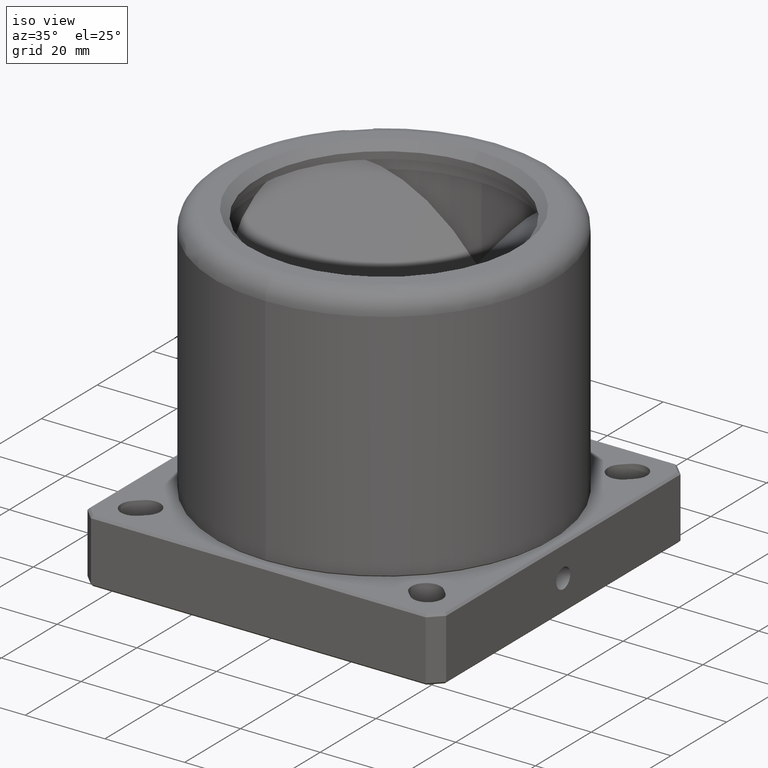
[diagram: clean part render]
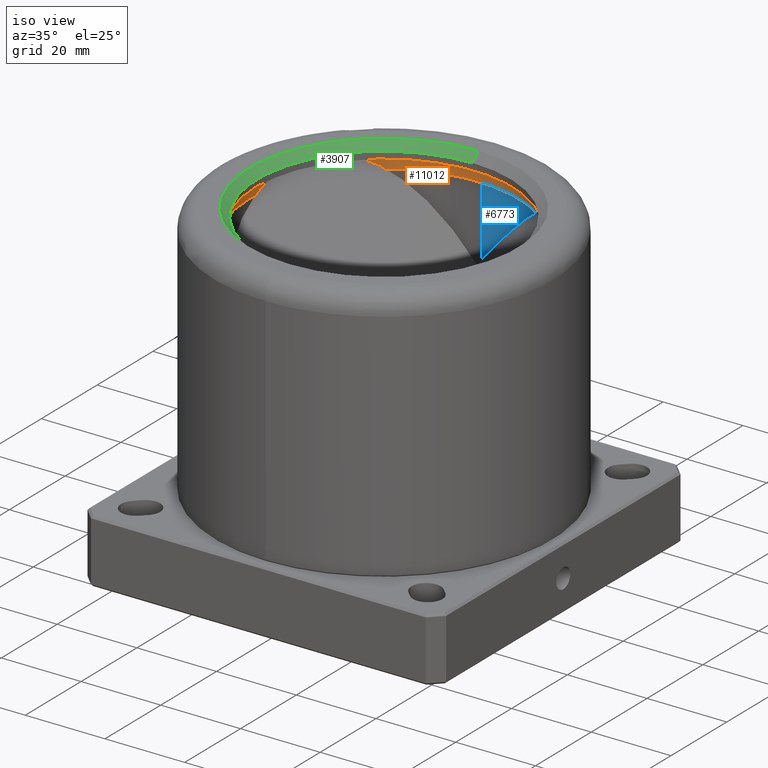
[diagram: same view with three faces highlighted in distinct colors, each labeled with its STEP entity id]
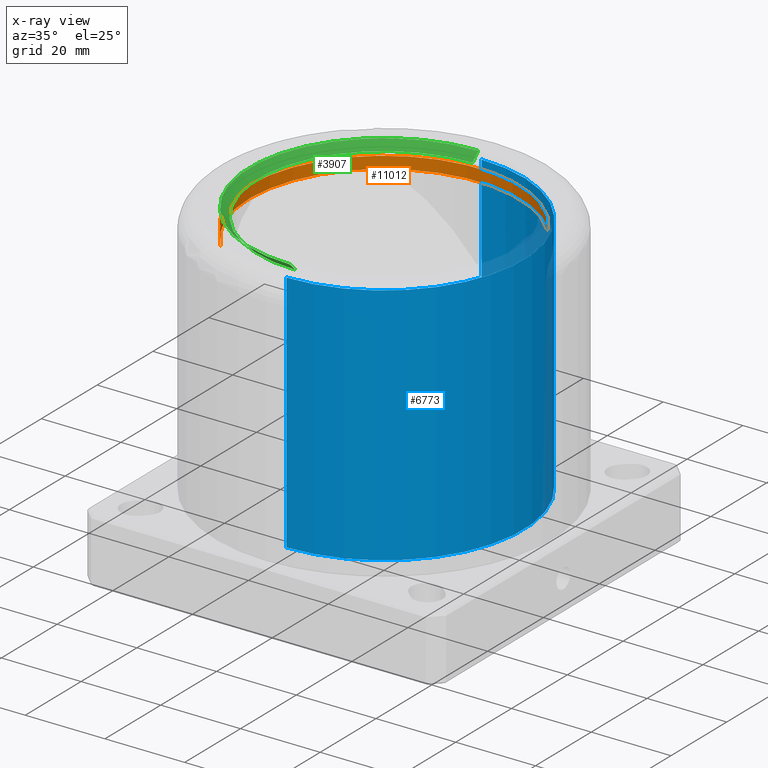
[diagram: x-ray of the same camera — body ghosted, the three highlighted faces saturated]
A machine part, iso view with three faces highlighted in distinct colors.
The next image is the same camera in x-ray (body ghosted, the three faces saturated) — at least one of them is partly hidden behind the body in this view.
Their STEP definitions:

[orange] entity #11012 — the highlighted cylindrical surface (partial cylindrical patch) has radius 33.8 mm, axis along (-0, -0, 1).
#412 = EDGE_CURVE ( 'NONE', #908, #2122, #7817, .T. ) ;
#638 = DIRECTION ( 'NONE',  ( -1.630219754709588900E-015, -3.446797922467301400E-016, 1.000000000000000000 ) ) ;
#908 = VERTEX_POINT ( 'NONE', #9680 ) ;
#1424 = CARTESIAN_POINT ( 'NONE',  ( 7.001642459291711200E-015, 7.486135543895150400E-015, 73.00000000000000000 ) ) ;
#2122 = VERTEX_POINT ( 'NONE', #3504 ) ;
#2354 = DIRECTION ( 'NONE',  ( -0.7440789670012321100, -0.6680916784890971200, -1.642341752404077500E-015 ) ) ;
#2461 = EDGE_LOOP ( 'NONE', ( #2470, #5391, #8292, #7833 ) ) ;
#2470 = ORIENTED_EDGE ( 'NONE', *, *, #412, .F. ) ;
#3254 = VERTEX_POINT ( 'NONE', #4341 ) ;
#3308 = CARTESIAN_POINT ( 'NONE',  ( 2.110983195162944800E-015, 6.452096167154959700E-015, 76.00000000000000000 ) ) ;
#3504 = CARTESIAN_POINT ( 'NONE',  ( -25.14986908464164700, -22.58149873293147500, 75.99999999999994300 ) ) ;
#3786 = LINE ( 'NONE', #10321, #10731 ) ;
#3916 = CIRCLE ( 'NONE', #8013, 33.80000000000000400 ) ;
#3981 = DIRECTION ( 'NONE',  ( -1.630219754709588900E-015, -3.446797922467301400E-016, 1.000000000000000000 ) ) ;
#4227 = DIRECTION ( 'NONE',  ( -0.7440789670012321100, -0.6680916784890971200, -1.642341752404077500E-015 ) ) ;
#4341 = CARTESIAN_POINT ( 'NONE',  ( 25.14986908464164700, 22.58149873293149000, 76.00000000000005700 ) ) ;
#4700 = CYLINDRICAL_SURFACE ( 'NONE', #6148, 33.80000000000000400 ) ;
#5019 = VERTEX_POINT ( 'NONE', #7644 ) ;
#5091 = CARTESIAN_POINT ( 'NONE',  ( -25.14986908464164400, -22.58149873293147500, 72.99999999999994300 ) ) ;
#5114 = EDGE_CURVE ( 'NONE', #2122, #3254, #3916, .T. ) ;
#5391 = ORIENTED_EDGE ( 'NONE', *, *, #10069, .T. ) ;
#5394 = DIRECTION ( 'NONE',  ( -1.630219754709588900E-015, -3.446797922467301400E-016, 1.000000000000000000 ) ) ;
#5411 = VECTOR ( 'NONE', #5394, 1000.000000000000000 ) ;
#6136 = AXIS2_PLACEMENT_3D ( 'NONE', #1424, #7739, #2354 ) ;
#6148 = AXIS2_PLACEMENT_3D ( 'NONE', #9750, #638, #7920 ) ;
#7644 = CARTESIAN_POINT ( 'NONE',  ( 25.14986908464165400, 22.58149873293149300, 73.00000000000005700 ) ) ;
#7739 = DIRECTION ( 'NONE',  ( 1.630219754709588900E-015, 3.446797922467301400E-016, -1.000000000000000000 ) ) ;
#7817 = LINE ( 'NONE', #5091, #5411 ) ;
#7833 = ORIENTED_EDGE ( 'NONE', *, *, #5114, .F. ) ;
#7920 = DIRECTION ( 'NONE',  ( 0.7440789670012321100, 0.6680916784890971200, 1.642341752404077500E-015 ) ) ;
#8013 = AXIS2_PLACEMENT_3D ( 'NONE', #3308, #9662, #4227 ) ;
#8174 = FACE_OUTER_BOUND ( 'NONE', #2461, .T. ) ;
#8292 = ORIENTED_EDGE ( 'NONE', *, *, #9996, .T. ) ;
#8740 = CIRCLE ( 'NONE', #6136, 33.80000000000000400 ) ;
#9662 = DIRECTION ( 'NONE',  ( 1.630219754709588900E-015, 3.446797922467301400E-016, -1.000000000000000000 ) ) ;
#9680 = CARTESIAN_POINT ( 'NONE',  ( -25.14986908464164000, -22.58149873293147200, 72.99999999999994300 ) ) ;
#9750 = CARTESIAN_POINT ( 'NONE',  ( 7.001642459291711200E-015, 7.486135543895150400E-015, 73.00000000000000000 ) ) ;
#9996 = EDGE_CURVE ( 'NONE', #5019, #3254, #3786, .T. ) ;
#10069 = EDGE_CURVE ( 'NONE', #908, #5019, #8740, .T. ) ;
#10321 = CARTESIAN_POINT ( 'NONE',  ( 25.14986908464165400, 22.58149873293149300, 73.00000000000005700 ) ) ;
#10731 = VECTOR ( 'NONE', #3981, 1000.000000000000000 ) ;
#11012 = ADVANCED_FACE ( 'NONE', ( #8174 ), #4700, .F. ) ;

[blue] entity #6773 — the highlighted cylindrical surface (partial cylindrical patch) has radius 35 mm, axis along (-0, 0, -1).
#106 = AXIS2_PLACEMENT_3D ( 'NONE', #202, #6536, #1113 ) ;
#195 = VECTOR ( 'NONE', #513, 1000.000000000000000 ) ;
#202 = CARTESIAN_POINT ( 'NONE',  ( -1.638795070508522800E-015, 2.316515400426250000E-015, 16.29999999999999400 ) ) ;
#501 = LINE ( 'NONE', #11395, #195 ) ;
#513 = DIRECTION ( 'NONE',  ( -8.326672684688669100E-017, 0.0000000000000000000, -1.000000000000000000 ) ) ;
#1113 = DIRECTION ( 'NONE',  ( 3.747002708109906500E-015, -1.000000000000000000, 0.0000000000000000000 ) ) ;
#1157 = CARTESIAN_POINT ( 'NONE',  ( -1.345221918098562200E-013, 35.00000000000000000, 16.29999999999999400 ) ) ;
#2925 = CARTESIAN_POINT ( 'NONE',  ( -1.345221918098562200E-013, 35.00000000000000000, 77.50000000000000000 ) ) ;
#3132 = CARTESIAN_POINT ( 'NONE',  ( -5.341288838055910000E-016, 2.316515400426250000E-015, 29.56659793814429800 ) ) ;
#3517 = VERTEX_POINT ( 'NONE', #1157 ) ;
#3568 = CIRCLE ( 'NONE', #106, 35.00000000000000000 ) ;
#3667 = CARTESIAN_POINT ( 'NONE',  ( 1.295062997133381800E-013, -35.00000000000000000, 16.29999999999999400 ) ) ;
#3807 = VERTEX_POINT ( 'NONE', #11527 ) ;
#4040 = DIRECTION ( 'NONE',  ( -8.326672684688669100E-017, 0.0000000000000000000, -1.000000000000000000 ) ) ;
#4702 = CARTESIAN_POINT ( 'NONE',  ( 1.306109659000411000E-013, -35.00000000000000000, 29.56659793814429800 ) ) ;
#4918 = ORIENTED_EDGE ( 'NONE', *, *, #6303, .T. ) ;
#5095 = EDGE_CURVE ( 'NONE', #9923, #3517, #501, .T. ) ;
#5142 = ORIENTED_EDGE ( 'NONE', *, *, #9141, .F. ) ;
#5153 = DIRECTION ( 'NONE',  ( -8.326672684688669100E-017, 0.0000000000000000000, -1.000000000000000000 ) ) ;
#6303 = EDGE_CURVE ( 'NONE', #3517, #10267, #3568, .T. ) ;
#6536 = DIRECTION ( 'NONE',  ( -8.326672684688669100E-017, 0.0000000000000000000, -1.000000000000000000 ) ) ;
#6773 = ADVANCED_FACE ( 'NONE', ( #6774 ), #8015, .F. ) ;
#6774 = FACE_OUTER_BOUND ( 'NONE', #8376, .T. ) ;
#7133 = EDGE_CURVE ( 'NONE', #3807, #10267, #10719, .T. ) ;
#7645 = DIRECTION ( 'NONE',  ( 3.747002708109906500E-015, -1.000000000000000000, 0.0000000000000000000 ) ) ;
#7777 = ORIENTED_EDGE ( 'NONE', *, *, #5095, .T. ) ;
#8015 = CYLINDRICAL_SURFACE ( 'NONE', #9851, 35.00000000000000000 ) ;
#8376 = EDGE_LOOP ( 'NONE', ( #5142, #7777, #4918, #10292 ) ) ;
#8577 = VECTOR ( 'NONE', #11015, 1000.000000000000000 ) ;
#8932 = CIRCLE ( 'NONE', #8991, 35.00000000000000000 ) ;
#8991 = AXIS2_PLACEMENT_3D ( 'NONE', #10569, #5153, #11465 ) ;
#9141 = EDGE_CURVE ( 'NONE', #9923, #3807, #8932, .T. ) ;
#9851 = AXIS2_PLACEMENT_3D ( 'NONE', #3132, #4040, #7645 ) ;
#9923 = VERTEX_POINT ( 'NONE', #2925 ) ;
#10267 = VERTEX_POINT ( 'NONE', #3667 ) ;
#10292 = ORIENTED_EDGE ( 'NONE', *, *, #7133, .F. ) ;
#10569 = CARTESIAN_POINT ( 'NONE',  ( 3.457128612520943600E-015, 2.316515400426250000E-015, 77.50000000000000000 ) ) ;
#10719 = LINE ( 'NONE', #4702, #8577 ) ;
#11015 = DIRECTION ( 'NONE',  ( -8.326672684688669100E-017, 0.0000000000000000000, -1.000000000000000000 ) ) ;
#11395 = CARTESIAN_POINT ( 'NONE',  ( -1.359654874646680400E-013, 35.00000000000000000, 29.56659793814429800 ) ) ;
#11465 = DIRECTION ( 'NONE',  ( 3.747002708109906500E-015, -1.000000000000000000, 0.0000000000000000000 ) ) ;
#11527 = CARTESIAN_POINT ( 'NONE',  ( 1.346022233963676500E-013, -35.00000000000000000, 77.50000000000000000 ) ) ;

[green] entity #3907 — the highlighted conical surface has half-angle 45 deg.
#20 = CONICAL_SURFACE ( 'NONE', #7165, 33.75000000000000000, 0.7853981633974447300 ) ;
#714 = ORIENTED_EDGE ( 'NONE', *, *, #10035, .F. ) ;
#731 = DIRECTION ( 'NONE',  ( -2.590652556828221000E-015, 0.7071067811865450200, 0.7071067811865500200 ) ) ;
#1617 = LINE ( 'NONE', #9813, #10987 ) ;
#1952 = CARTESIAN_POINT ( 'NONE',  ( -1.227960459690711600E-013, 33.75000000000000000, 80.00000000000000000 ) ) ;
#2512 = AXIS2_PLACEMENT_3D ( 'NONE', #10446, #5024, #11345 ) ;
#2693 = EDGE_CURVE ( 'NONE', #5145, #3367, #6965, .T. ) ;
#3367 = VERTEX_POINT ( 'NONE', #1952 ) ;
#3785 = CARTESIAN_POINT ( 'NONE',  ( -1.193776442755497100E-013, 31.75000000000000000, 78.00000000000000000 ) ) ;
#3907 = ADVANCED_FACE ( 'NONE', ( #6019 ), #20, .F. ) ;
#3988 = ORIENTED_EDGE ( 'NONE', *, *, #5417, .F. ) ;
#5024 = DIRECTION ( 'NONE',  ( 8.326672684688669100E-017, 0.0000000000000000000, 1.000000000000000000 ) ) ;
#5089 = DIRECTION ( 'NONE',  ( -3.747002708109905700E-015, 1.000000000000000000, 0.0000000000000000000 ) ) ;
#5145 = VERTEX_POINT ( 'NONE', #7794 ) ;
#5403 = CARTESIAN_POINT ( 'NONE',  ( 3.665295429638160400E-015, 2.316515400426250000E-015, 80.00000000000000000 ) ) ;
#5417 = EDGE_CURVE ( 'NONE', #9082, #5145, #8118, .T. ) ;
#5441 = DIRECTION ( 'NONE',  ( -3.747002708109905700E-015, 1.000000000000000000, 0.0000000000000000000 ) ) ;
#5582 = CARTESIAN_POINT ( 'NONE',  ( 1.259934538812251600E-013, -33.75000000000000000, 80.00000000000000000 ) ) ;
#5646 = VERTEX_POINT ( 'NONE', #3785 ) ;
#5760 = VECTOR ( 'NONE', #6550, 1000.000000000000000 ) ;
#5878 = CARTESIAN_POINT ( 'NONE',  ( 1.224452812767221900E-013, -31.75000000000000000, 78.00000000000000000 ) ) ;
#5972 = DIRECTION ( 'NONE',  ( -8.326672684688669100E-017, -0.0000000000000000000, -1.000000000000000000 ) ) ;
#6019 = FACE_OUTER_BOUND ( 'NONE', #7309, .T. ) ;
#6550 = DIRECTION ( 'NONE',  ( 2.621813885605955600E-015, -0.7071067811865450200, 0.7071067811865500200 ) ) ;
#6651 = ORIENTED_EDGE ( 'NONE', *, *, #2693, .F. ) ;
#6815 = CARTESIAN_POINT ( 'NONE',  ( 3.665295429638160400E-015, 2.316515400426250000E-015, 80.00000000000000000 ) ) ;
#6965 = CIRCLE ( 'NONE', #7334, 33.75000000000000000 ) ;
#7026 = EDGE_CURVE ( 'NONE', #5646, #3367, #1617, .T. ) ;
#7148 = CIRCLE ( 'NONE', #2512, 31.75000000000000000 ) ;
#7165 = AXIS2_PLACEMENT_3D ( 'NONE', #5403, #9947, #5441 ) ;
#7309 = EDGE_LOOP ( 'NONE', ( #3988, #714, #11766, #6651 ) ) ;
#7334 = AXIS2_PLACEMENT_3D ( 'NONE', #6815, #5972, #5089 ) ;
#7794 = CARTESIAN_POINT ( 'NONE',  ( 1.259934538812251600E-013, -33.75000000000000000, 80.00000000000000000 ) ) ;
#8118 = LINE ( 'NONE', #5582, #5760 ) ;
#9082 = VERTEX_POINT ( 'NONE', #5878 ) ;
#9813 = CARTESIAN_POINT ( 'NONE',  ( -1.227960459690711600E-013, 33.75000000000000000, 80.00000000000000000 ) ) ;
#9947 = DIRECTION ( 'NONE',  ( 8.326672684688669100E-017, 0.0000000000000000000, 1.000000000000000000 ) ) ;
#10035 = EDGE_CURVE ( 'NONE', #5646, #9082, #7148, .T. ) ;
#10446 = CARTESIAN_POINT ( 'NONE',  ( 3.498761975944386500E-015, 2.316515400426250000E-015, 78.00000000000000000 ) ) ;
#10987 = VECTOR ( 'NONE', #731, 1000.000000000000000 ) ;
#11345 = DIRECTION ( 'NONE',  ( -3.747002708109905700E-015, 1.000000000000000000, 0.0000000000000000000 ) ) ;
#11766 = ORIENTED_EDGE ( 'NONE', *, *, #7026, .T. ) ;